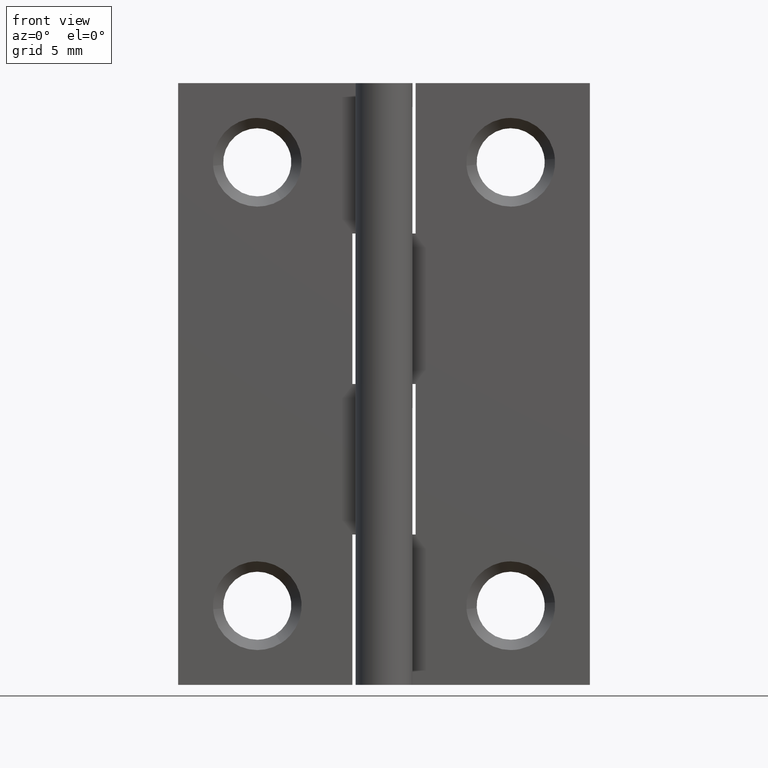
[diagram: clean part render]
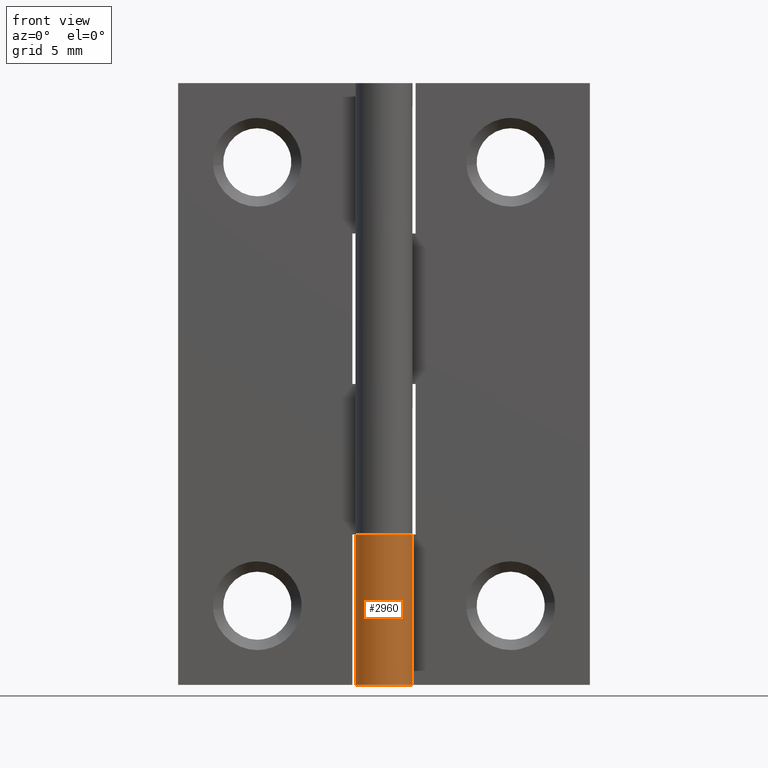
[diagram: same view with one face highlighted and labeled with its STEP entity id]
A machine part, front view. The second image highlights one B-rep face of the part: STEP entity #2960.
In plain terms, the highlighted face is a freeform B-spline surface patch.
Its self-contained STEP definition (entity closure, byte-faithful):
#2446=CARTESIAN_POINT('',(1.528888485142070,0.950000000000000,9.500000000000000));
#2447=VERTEX_POINT('',#2446);
#2448=CARTESIAN_POINT('',(0.0,1.799998999999940,9.499999999999901));
#2449=VERTEX_POINT('',#2448);
#2450=CARTESIAN_POINT('',(1.528888485142070,0.950000000000000,9.500000000000000));
#2451=CARTESIAN_POINT('',(2.263977929743539,-0.233020132948154,9.500000000000069));
#2452=CARTESIAN_POINT('',(1.303326767780350,-1.241506385275975,9.500000000000050));
#2453=CARTESIAN_POINT('',(0.342675605817160,-2.249992637603796,9.500000000000028));
#2454=CARTESIAN_POINT('',(-0.874642784226794,-1.573213772255256,9.499999999999950));
#2455=CARTESIAN_POINT('',(-2.091961174270748,-0.896434906906717,9.499999999999870));
#2456=CARTESIAN_POINT('',(-1.742381113599924,0.451781698599287,9.499999999999851));
#2457=CARTESIAN_POINT('',(-1.392801052929100,1.799998304105293,9.499999999999831));
#2458=CARTESIAN_POINT('',(0.0,1.799998999999940,9.499999999999901));
#2466=(BOUNDED_CURVE()B_SPLINE_CURVE(2,(#2450,#2451,#2452,#2453,#2454,#2455,#2456,#2457,#2458),.UNSPECIFIED.,.F.,.U.)B_SPLINE_CURVE_WITH_KNOTS((3,2,2,2,3),(0.0,0.250000000000000,0.500000000000000,0.750000000000000,1.0),.UNSPECIFIED.)CURVE()GEOMETRIC_REPRESENTATION_ITEM()RATIONAL_B_SPLINE_CURVE((1.0,0.790882628363956,1.0,0.790882628363956,1.0,0.790882628363956,1.0,0.790882628363956,1.0))REPRESENTATION_ITEM(''));
#2467=EDGE_CURVE('',#2447,#2449,#2466,.T.);
#2511=CARTESIAN_POINT('',(0.001897366339664,1.799998999999940,9.499999999999901));
#2512=VERTEX_POINT('',#2511);
#2518=CARTESIAN_POINT('',(0.001897366339664,1.799998999999940,9.499999999999901));
#2519=CARTESIAN_POINT('',(0.0,1.799998999999940,9.499999999999901));
#2520=QUASI_UNIFORM_CURVE('',1,(#2518,#2519),.UNSPECIFIED.,.F.,.U.);
#2521=EDGE_CURVE('',#2512,#2449,#2520,.T.);
#2638=CARTESIAN_POINT('',(1.528888485142070,0.950000000000000,0.0));
#2639=VERTEX_POINT('',#2638);
#2645=CARTESIAN_POINT('',(0.001897366339664,1.799999000000000,0.0));
#2646=VERTEX_POINT('',#2645);
#2647=CARTESIAN_POINT('',(1.528888485142070,0.950000000000000,0.0));
#2648=CARTESIAN_POINT('',(2.264178069144422,-0.233342924448530,0.0));
#2649=CARTESIAN_POINT('',(1.302999556723709,-1.241850294994457,0.0));
#2650=CARTESIAN_POINT('',(0.341821044302997,-2.250357665540382,0.0));
#2651=CARTESIAN_POINT('',(-0.875471818949307,-1.572752076528781,0.0));
#2652=CARTESIAN_POINT('',(-2.092764682201612,-0.895146487517178,0.0));
#2653=CARTESIAN_POINT('',(-1.742023403149211,0.453160526613298,0.0));
#2654=CARTESIAN_POINT('',(-1.391282124096810,1.801467540743772,0.0));
#2655=CARTESIAN_POINT('',(0.001897366339664,1.799999000000000,0.0));
#2663=(BOUNDED_CURVE()B_SPLINE_CURVE(2,(#2647,#2648,#2649,#2650,#2651,#2652,#2653,#2654,#2655),.UNSPECIFIED.,.F.,.U.)B_SPLINE_CURVE_WITH_KNOTS((3,2,2,2,3),(0.0,0.250000000000000,0.500000000000000,0.750000000000000,1.0),.UNSPECIFIED.)CURVE()GEOMETRIC_REPRESENTATION_ITEM()RATIONAL_B_SPLINE_CURVE((1.0,0.790801987648639,1.0,0.790801987648639,1.0,0.790801987648639,1.0,0.790801987648639,1.0))REPRESENTATION_ITEM(''));
#2664=EDGE_CURVE('',#2639,#2646,#2663,.T.);
#2768=CARTESIAN_POINT('',(1.528888485142070,0.950000000000000,9.500000000000000));
#2769=CARTESIAN_POINT('',(1.528888485142070,0.950000000000000,0.0));
#2770=QUASI_UNIFORM_CURVE('',1,(#2768,#2769),.UNSPECIFIED.,.F.,.U.);
#2771=EDGE_CURVE('',#2447,#2639,#2770,.T.);
#2903=CARTESIAN_POINT('',(0.001897366339664,1.799998999999940,9.499999999999901));
#2904=CARTESIAN_POINT('',(0.001897366339664,1.799999000000000,0.0));
#2905=QUASI_UNIFORM_CURVE('',1,(#2903,#2904),.UNSPECIFIED.,.F.,.U.);
#2906=EDGE_CURVE('',#2512,#2646,#2905,.T.);
#2931=CARTESIAN_POINT('',(0.051658570403824,1.799258567328173,9.737500000000052));
#2932=CARTESIAN_POINT('',(0.051658570403824,1.799258567328173,-0.243437500000001));
#2933=CARTESIAN_POINT('',(-2.196862823818758,1.863815937156590,9.737500000000052));
#2934=CARTESIAN_POINT('',(-2.196862823818758,1.863815937156590,-0.243437500000001));
#2935=CARTESIAN_POINT('',(-1.766796336686053,-0.344137624610768,9.737500000000052));
#2936=CARTESIAN_POINT('',(-1.766796336686053,-0.344137624610768,-0.243437500000001));
#2937=CARTESIAN_POINT('',(-1.336729849553347,-2.552091186378127,9.737500000000052));
#2938=CARTESIAN_POINT('',(-1.336729849553347,-2.552091186378127,-0.243437500000001));
#2939=CARTESIAN_POINT('',(0.723182769453666,-1.648334517616289,9.737500000000052));
#2940=CARTESIAN_POINT('',(0.723182769453666,-1.648334517616289,-0.243437500000001));
#2941=CARTESIAN_POINT('',(2.783095388460680,-0.744577848854451,9.737500000000052));
#2942=CARTESIAN_POINT('',(2.783095388460680,-0.744577848854451,-0.243437500000001));
#2943=CARTESIAN_POINT('',(1.449639291241658,1.067026675059430,9.737500000000052));
#2944=CARTESIAN_POINT('',(1.449639291241658,1.067026675059430,-0.243437500000001));
#2952=(BOUNDED_SURFACE()B_SPLINE_SURFACE(1,2,((#2931,#2933,#2935,#2937,#2939,#2941,#2943),(#2932,#2934,#2936,#2938,#2940,#2942,#2944)),.UNSPECIFIED.,.F.,.F.,.U.)B_SPLINE_SURFACE_WITH_KNOTS((2,2),(3,2,2,3),(0.0,9.980937500000053),(0.0,3.459968446201030,6.919936892402060,10.379905338603090),.UNSPECIFIED.)GEOMETRIC_REPRESENTATION_ITEM()RATIONAL_B_SPLINE_SURFACE(((1.0,0.624788514543960,1.0,0.624788514543960,1.0,0.624788514543960,1.0),(1.0,0.624788514543960,1.0,0.624788514543960,1.0,0.624788514543960,1.0)))REPRESENTATION_ITEM('')SURFACE());
#2953=ORIENTED_EDGE('',*,*,#2771,.F.);
#2954=ORIENTED_EDGE('',*,*,#2467,.T.);
#2955=ORIENTED_EDGE('',*,*,#2521,.F.);
#2956=ORIENTED_EDGE('',*,*,#2906,.T.);
#2957=ORIENTED_EDGE('',*,*,#2664,.F.);
#2958=EDGE_LOOP('',(#2953,#2954,#2955,#2956,#2957));
#2959=FACE_OUTER_BOUND('',#2958,.T.);
#2960=ADVANCED_FACE('',(#2959),#2952,.T.);